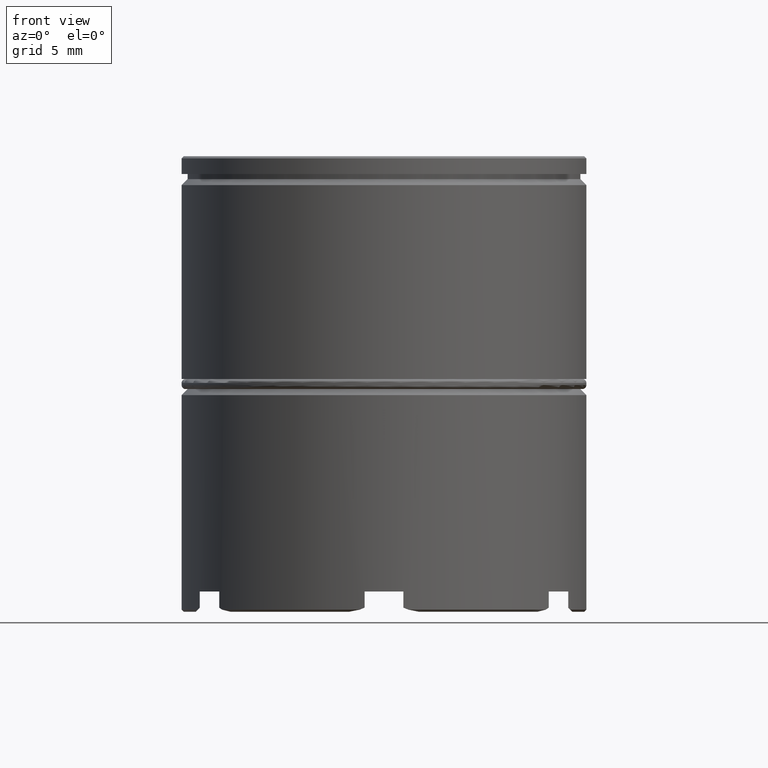
[diagram: clean part render]
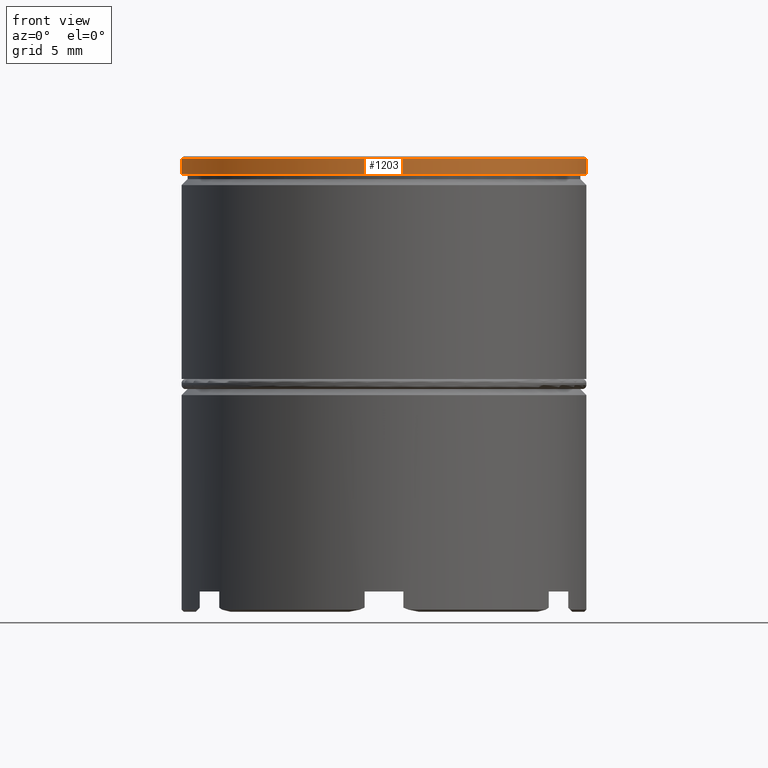
[diagram: same view with one face highlighted and labeled with its STEP entity id]
A machine part, front view. The second image highlights one B-rep face of the part: STEP entity #1203.
In plain terms, the highlighted cylindrical surface (partial cylindrical patch) has radius 10 mm, axis along (-0, -0, 1).
Its self-contained STEP definition (entity closure, byte-faithful):
#61 = ORIENTED_EDGE ( 'NONE', *, *, #1057, .F. ) ;
#93 = CARTESIAN_POINT ( 'NONE',  ( 10.00000000000000000, 0.000000000000000000, -0.1000000000000011297 ) ) ;
#182 = CYLINDRICAL_SURFACE ( 'NONE', #656, 10.00000000000000000 ) ;
#219 = CARTESIAN_POINT ( 'NONE',  ( 0.000000000000000000, 0.000000000000000000, -0.1000000000000011297 ) ) ;
#284 = ORIENTED_EDGE ( 'NONE', *, *, #1514, .T. ) ;
#290 = CARTESIAN_POINT ( 'NONE',  ( -10.00000000000000000, 1.224646799147353256E-15, -0.8749999999999998890 ) ) ;
#360 = EDGE_CURVE ( 'NONE', #630, #1504, #522, .T. ) ;
#367 = CARTESIAN_POINT ( 'NONE',  ( -10.00000000000000000, 1.224646799147353256E-15, -0.1000000000000011297 ) ) ;
#400 = DIRECTION ( 'NONE',  ( 1.000000000000000000, 0.000000000000000000, 0.000000000000000000 ) ) ;
#442 = VECTOR ( 'NONE', #680, 1000.000000000000000 ) ;
#505 = FACE_OUTER_BOUND ( 'NONE', #523, .T. ) ;
#522 = CIRCLE ( 'NONE', #1336, 10.00000000000000000 ) ;
#523 = EDGE_LOOP ( 'NONE', ( #61, #1058, #284, #1460 ) ) ;
#528 = CARTESIAN_POINT ( 'NONE',  ( 0.000000000000000000, 0.000000000000000000, 0.000000000000000000 ) ) ;
#565 = EDGE_CURVE ( 'NONE', #1400, #1183, #1121, .T. ) ;
#630 = VERTEX_POINT ( 'NONE', #93 ) ;
#656 = AXIS2_PLACEMENT_3D ( 'NONE', #528, #1271, #400 ) ;
#680 = DIRECTION ( 'NONE',  ( -0.000000000000000000, -0.000000000000000000, 1.000000000000000000 ) ) ;
#686 = DIRECTION ( 'NONE',  ( -0.000000000000000000, -0.000000000000000000, 1.000000000000000000 ) ) ;
#691 = DIRECTION ( 'NONE',  ( -0.000000000000000000, -0.000000000000000000, 1.000000000000000000 ) ) ;
#802 = LINE ( 'NONE', #1309, #926 ) ;
#829 = LINE ( 'NONE', #1447, #442 ) ;
#926 = VECTOR ( 'NONE', #691, 1000.000000000000000 ) ;
#1057 = EDGE_CURVE ( 'NONE', #1400, #1504, #829, .T. ) ;
#1058 = ORIENTED_EDGE ( 'NONE', *, *, #565, .T. ) ;
#1118 = CARTESIAN_POINT ( 'NONE',  ( 10.00000000000000000, 0.000000000000000000, -0.8749999999999998890 ) ) ;
#1121 = CIRCLE ( 'NONE', #1498, 10.00000000000000000 ) ;
#1183 = VERTEX_POINT ( 'NONE', #1118 ) ;
#1203 = ADVANCED_FACE ( 'NONE', ( #505 ), #182, .T. ) ;
#1206 = DIRECTION ( 'NONE',  ( 0.000000000000000000, 0.000000000000000000, -1.000000000000000000 ) ) ;
#1271 = DIRECTION ( 'NONE',  ( -0.000000000000000000, -0.000000000000000000, 1.000000000000000000 ) ) ;
#1309 = CARTESIAN_POINT ( 'NONE',  ( 10.00000000000000000, 0.000000000000000000, 0.000000000000000000 ) ) ;
#1336 = AXIS2_PLACEMENT_3D ( 'NONE', #219, #1206, #1349 ) ;
#1349 = DIRECTION ( 'NONE',  ( 1.000000000000000000, 0.000000000000000000, 0.000000000000000000 ) ) ;
#1400 = VERTEX_POINT ( 'NONE', #290 ) ;
#1447 = CARTESIAN_POINT ( 'NONE',  ( -10.00000000000000000, 1.224646799147353256E-15, 0.000000000000000000 ) ) ;
#1460 = ORIENTED_EDGE ( 'NONE', *, *, #360, .T. ) ;
#1498 = AXIS2_PLACEMENT_3D ( 'NONE', #1545, #686, #1576 ) ;
#1504 = VERTEX_POINT ( 'NONE', #367 ) ;
#1514 = EDGE_CURVE ( 'NONE', #1183, #630, #802, .T. ) ;
#1545 = CARTESIAN_POINT ( 'NONE',  ( 0.000000000000000000, 0.000000000000000000, -0.8749999999999998890 ) ) ;
#1576 = DIRECTION ( 'NONE',  ( 1.000000000000000000, 0.000000000000000000, 0.000000000000000000 ) ) ;